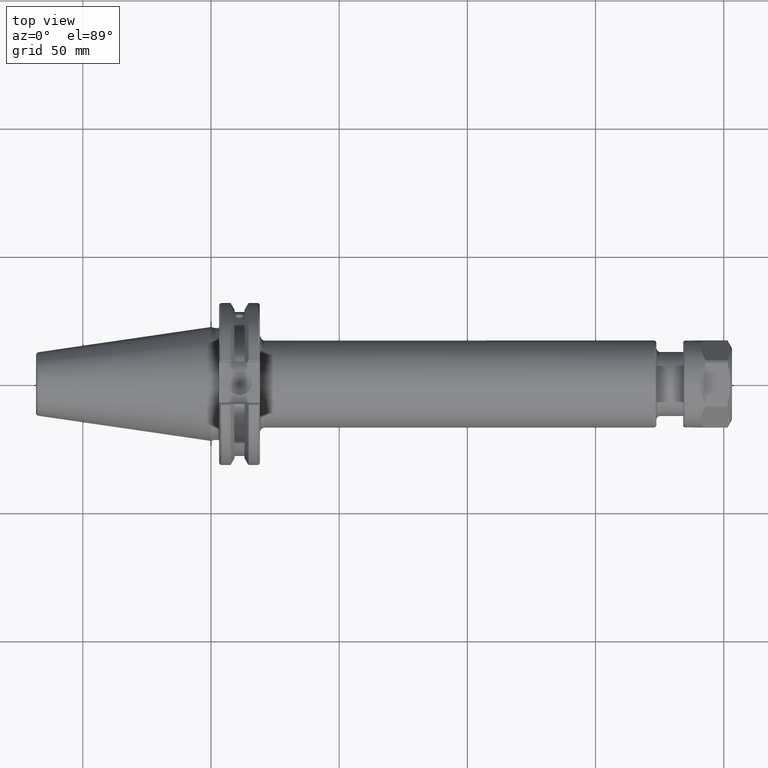
[diagram: clean part render]
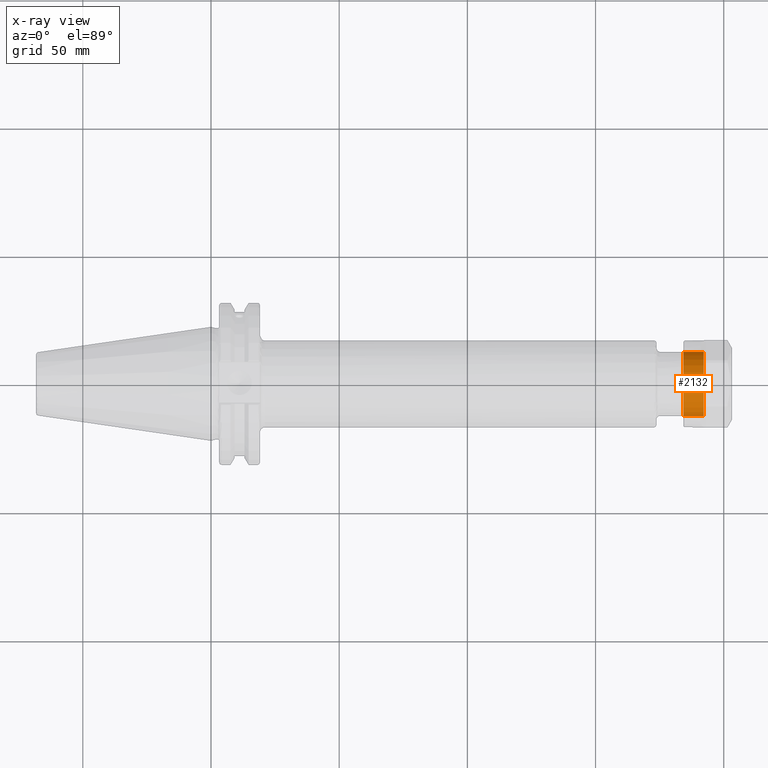
[diagram: x-ray — body ghosted, one internal face saturated and labeled with its STEP entity id]
A machine part, top view, then the same camera in x-ray: the body is ghosted and one INTERNAL B-rep face — a face not visible from any outside direction — is saturated and labeled: STEP entity #2132.
In plain terms, the highlighted cylindrical surface (bore or boss wall) has radius 12.5 mm, axis along (-1, 0, 0).
Its self-contained STEP definition (entity closure, byte-faithful):
#184=CYLINDRICAL_SURFACE('',#2456,12.5);
#381=FACE_OUTER_BOUND('',#522,.T.);
#522=EDGE_LOOP('',(#1992,#1993,#1994,#1995));
#646=LINE('',#4042,#768);
#768=VECTOR('',#3086,12.5);
#873=CIRCLE('',#2457,12.5);
#874=CIRCLE('',#2458,12.5);
#1076=VERTEX_POINT('',#4039);
#1077=VERTEX_POINT('',#4041);
#1382=EDGE_CURVE('',#1076,#1076,#873,.T.);
#1383=EDGE_CURVE('',#1076,#1077,#646,.T.);
#1384=EDGE_CURVE('',#1077,#1077,#874,.T.);
#1992=ORIENTED_EDGE('',*,*,#1382,.F.);
#1993=ORIENTED_EDGE('',*,*,#1383,.T.);
#1994=ORIENTED_EDGE('',*,*,#1384,.T.);
#1995=ORIENTED_EDGE('',*,*,#1383,.F.);
#2132=ADVANCED_FACE('',(#381),#184,.T.);
#2456=AXIS2_PLACEMENT_3D('',#4038,#3082,#3083);
#2457=AXIS2_PLACEMENT_3D('',#4040,#3084,#3085);
#2458=AXIS2_PLACEMENT_3D('',#4043,#3087,#3088);
#3082=DIRECTION('center_axis',(-1.,0.,0.));
#3083=DIRECTION('ref_axis',(0.,-1.,0.));
#3084=DIRECTION('center_axis',(-1.,0.,0.));
#3085=DIRECTION('ref_axis',(0.,1.,0.));
#3086=DIRECTION('',(1.,0.,0.));
#3087=DIRECTION('center_axis',(-1.,0.,0.));
#3088=DIRECTION('ref_axis',(0.,1.,0.));
#4038=CARTESIAN_POINT('Origin',(-9.5,0.,0.));
#4039=CARTESIAN_POINT('',(-9.5,12.5,-1.53080849893419E-15));
#4040=CARTESIAN_POINT('Origin',(-9.5,0.,0.));
#4041=CARTESIAN_POINT('',(-1.5,12.5,-1.53080849893419E-15));
#4042=CARTESIAN_POINT('',(-9.5,12.5,-1.53080849893419E-15));
#4043=CARTESIAN_POINT('Origin',(-1.5,0.,0.));